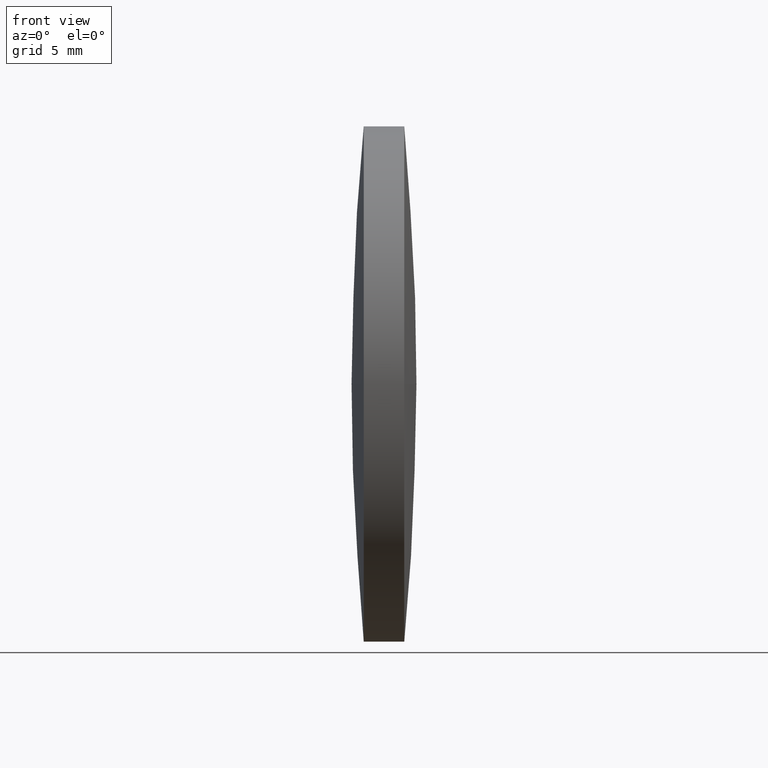
[diagram: clean part render]
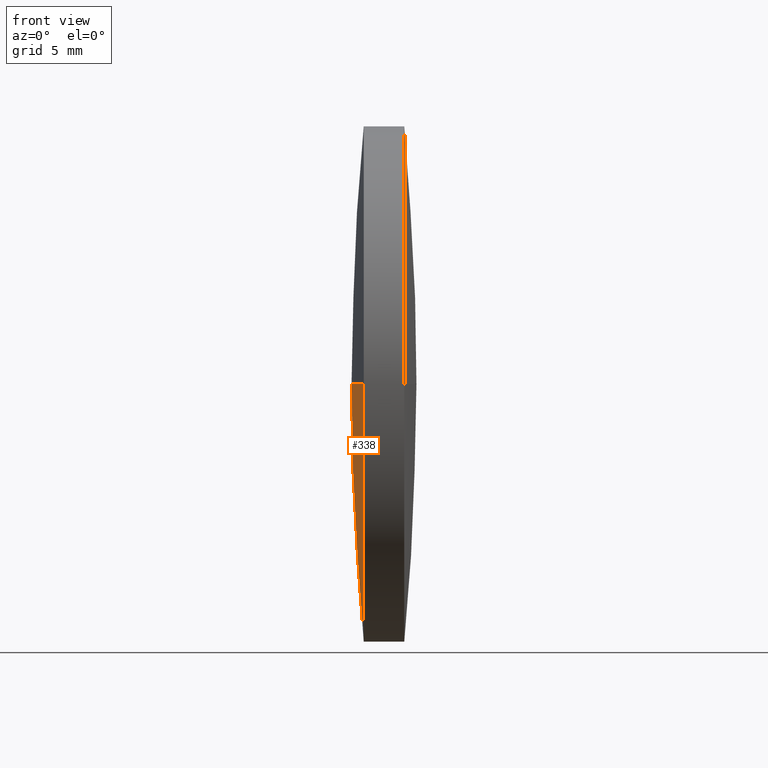
[diagram: same view with one face highlighted and labeled with its STEP entity id]
A machine part, front view. The second image highlights one B-rep face of the part: STEP entity #338.
In plain terms, the highlighted spherical surface has radius 134.671 mm.
Its self-contained STEP definition (entity closure, byte-faithful):
#7 = DIRECTION ( 'NONE',  ( 0.0000000000000000000, 0.0000000000000000000, 1.000000000000000000 ) ) ;
#8 = CARTESIAN_POINT ( 'NONE',  ( 85.45852234609111500, 61.31611302318469800, 0.0000000000000000000 ) ) ;
#28 = CARTESIAN_POINT ( 'NONE',  ( 85.45852234609111500, 48.61611302318478100, 0.0000000000000000000 ) ) ;
#32 = VERTEX_POINT ( 'NONE', #131 ) ;
#36 = CARTESIAN_POINT ( 'NONE',  ( 219.5296607706903600, 48.61611302318469500, 0.0000000000000000000 ) ) ;
#43 = EDGE_LOOP ( 'NONE', ( #211, #250, #167, #63 ) ) ;
#44 = AXIS2_PLACEMENT_3D ( 'NONE', #36, #95, #67 ) ;
#63 = ORIENTED_EDGE ( 'NONE', *, *, #81, .F. ) ;
#67 = DIRECTION ( 'NONE',  ( 0.0000000000000000000, 1.000000000000000000, 0.0000000000000000000 ) ) ;
#81 = EDGE_CURVE ( 'NONE', #234, #156, #266, .T. ) ;
#86 = CARTESIAN_POINT ( 'NONE',  ( 85.45852234609111500, 48.61611302318478100, 0.0000000000000000000 ) ) ;
#91 = DIRECTION ( 'NONE',  ( 0.0000000000000000000, 1.224646799147353200E-016, -1.000000000000000000 ) ) ;
#94 = SPHERICAL_SURFACE ( 'NONE', #44, 134.6713041388849500 ) ;
#95 = DIRECTION ( 'NONE',  ( -0.0000000000000000000, 0.0000000000000000000, -1.000000000000000000 ) ) ;
#110 = AXIS2_PLACEMENT_3D ( 'NONE', #141, #91, #188 ) ;
#128 = CIRCLE ( 'NONE', #157, 12.69999999999999600 ) ;
#129 = AXIS2_PLACEMENT_3D ( 'NONE', #28, #228, #7 ) ;
#131 = CARTESIAN_POINT ( 'NONE',  ( 85.45852234609111500, 48.61611302318478100, -12.69999999999999600 ) ) ;
#136 = FACE_OUTER_BOUND ( 'NONE', #43, .T. ) ;
#141 = CARTESIAN_POINT ( 'NONE',  ( 219.5296607706903600, 48.61611302318469500, 0.0000000000000000000 ) ) ;
#144 = DIRECTION ( 'NONE',  ( 1.000000000000000000, 0.0000000000000000000, 0.0000000000000000000 ) ) ;
#156 = VERTEX_POINT ( 'NONE', #227 ) ;
#157 = AXIS2_PLACEMENT_3D ( 'NONE', #86, #276, #251 ) ;
#165 = CIRCLE ( 'NONE', #110, 134.6713041388849500 ) ;
#167 = ORIENTED_EDGE ( 'NONE', *, *, #174, .T. ) ;
#174 = EDGE_CURVE ( 'NONE', #296, #156, #165, .T. ) ;
#187 = EDGE_CURVE ( 'NONE', #234, #32, #285, .T. ) ;
#188 = DIRECTION ( 'NONE',  ( 0.0000000000000000000, 1.000000000000000000, 1.224646799147353500E-016 ) ) ;
#196 = CARTESIAN_POINT ( 'NONE',  ( 219.5296607706903600, 48.61611302318469500, 0.0000000000000000000 ) ) ;
#211 = ORIENTED_EDGE ( 'NONE', *, *, #187, .T. ) ;
#213 = EDGE_CURVE ( 'NONE', #32, #296, #128, .T. ) ;
#227 = CARTESIAN_POINT ( 'NONE',  ( 84.85835663180540700, 48.61611302318470300, 0.0000000000000000000 ) ) ;
#228 = DIRECTION ( 'NONE',  ( -1.000000000000000000, -0.0000000000000000000, -0.0000000000000000000 ) ) ;
#234 = VERTEX_POINT ( 'NONE', #8 ) ;
#250 = ORIENTED_EDGE ( 'NONE', *, *, #213, .T. ) ;
#251 = DIRECTION ( 'NONE',  ( 0.0000000000000000000, 0.0000000000000000000, 1.000000000000000000 ) ) ;
#266 = CIRCLE ( 'NONE', #319, 134.6713041388849500 ) ;
#276 = DIRECTION ( 'NONE',  ( -1.000000000000000000, -0.0000000000000000000, -0.0000000000000000000 ) ) ;
#285 = CIRCLE ( 'NONE', #129, 12.69999999999999600 ) ;
#296 = VERTEX_POINT ( 'NONE', #303 ) ;
#303 = CARTESIAN_POINT ( 'NONE',  ( 85.45852234609111500, 35.91611302318477800, -1.555301434917127800E-015 ) ) ;
#319 = AXIS2_PLACEMENT_3D ( 'NONE', #196, #325, #144 ) ;
#325 = DIRECTION ( 'NONE',  ( -0.0000000000000000000, 0.0000000000000000000, 1.000000000000000000 ) ) ;
#338 = ADVANCED_FACE ( 'NONE', ( #136 ), #94, .T. ) ;